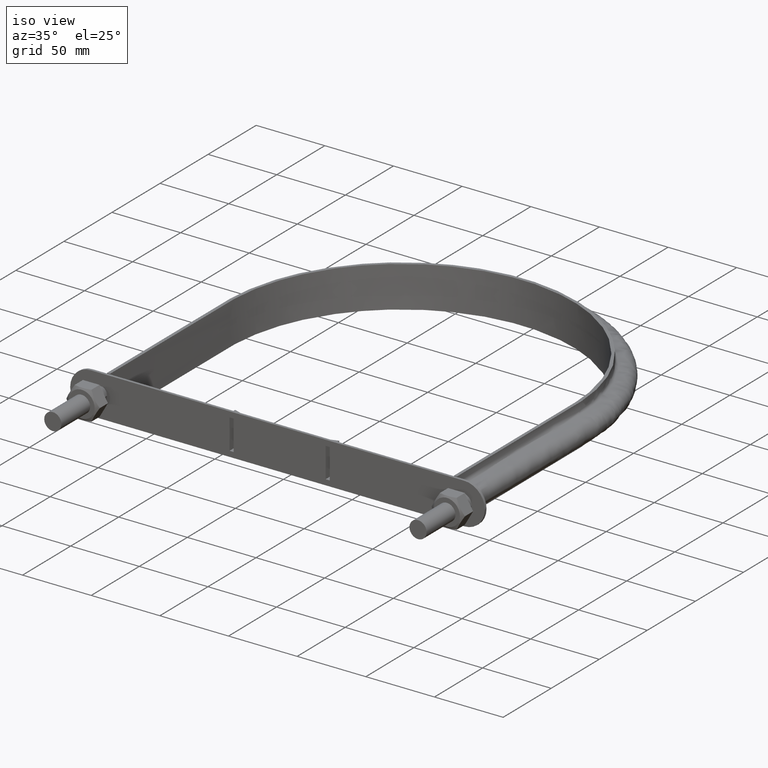
[diagram: clean part render]
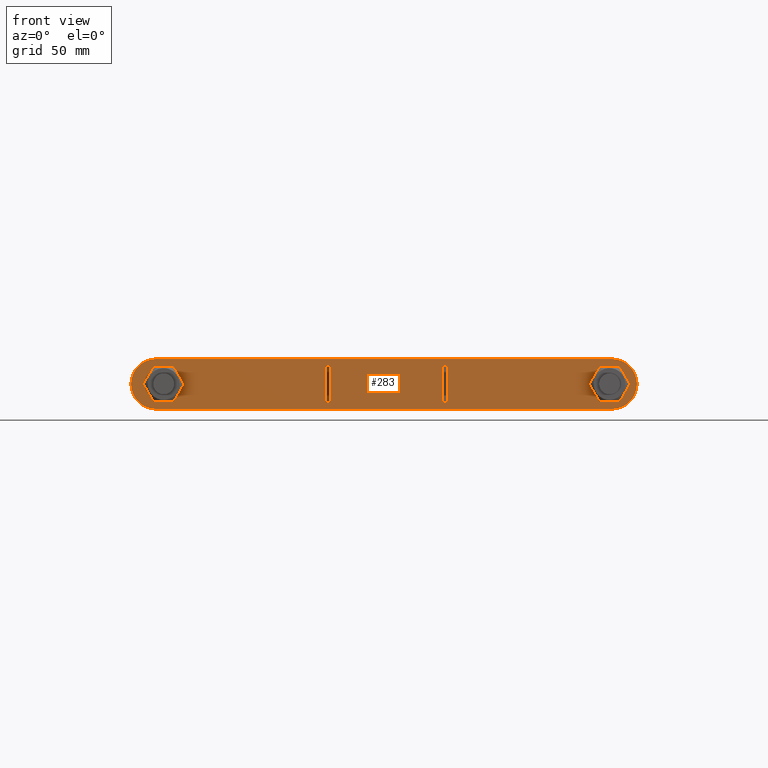
[diagram: tour spotlight — one face highlighted and labeled with its STEP entity id]
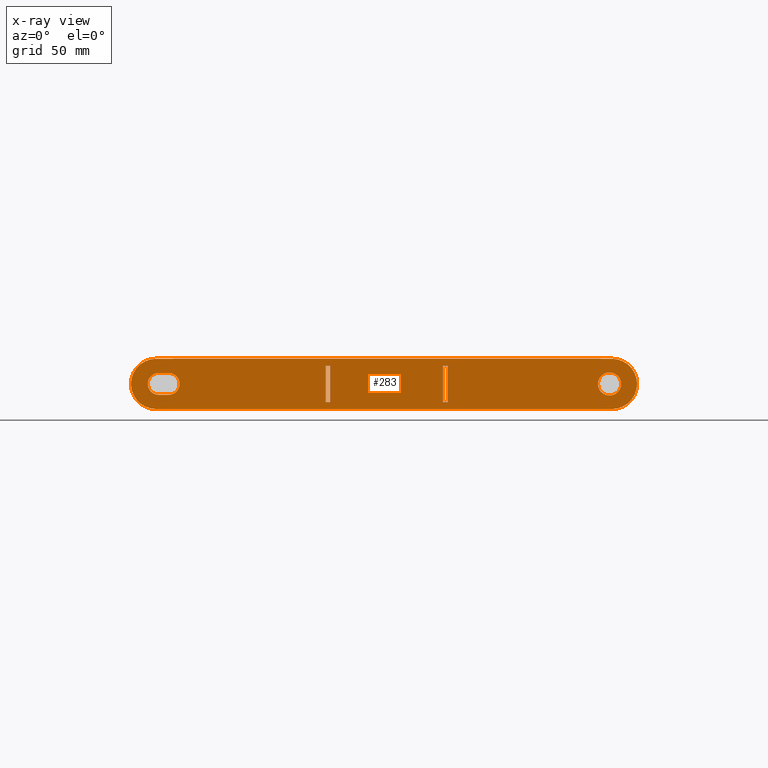
[diagram: x-ray of the same camera — body ghosted, this tour face saturated]
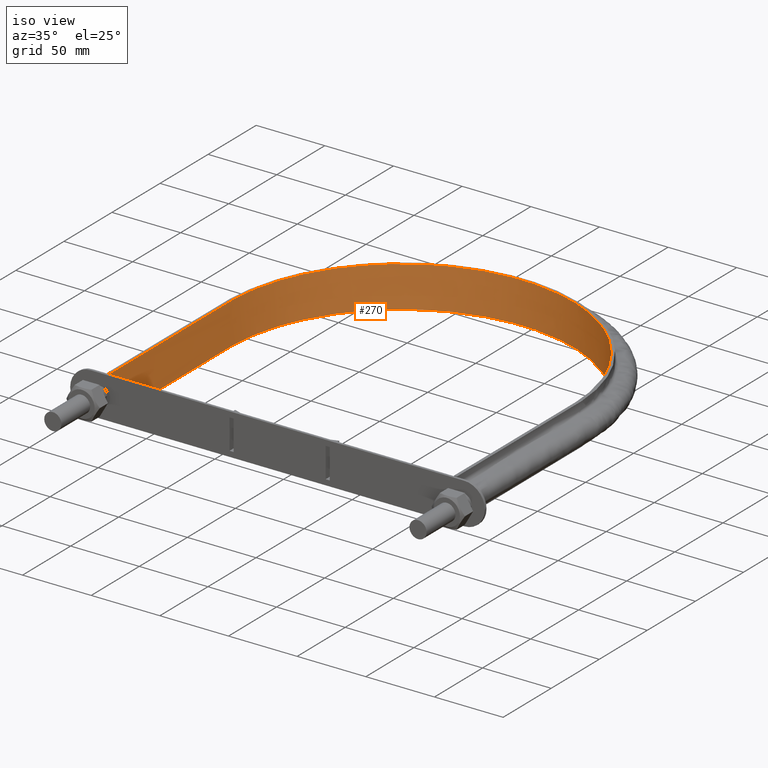
[diagram: tour spotlight — one face highlighted and labeled with its STEP entity id]
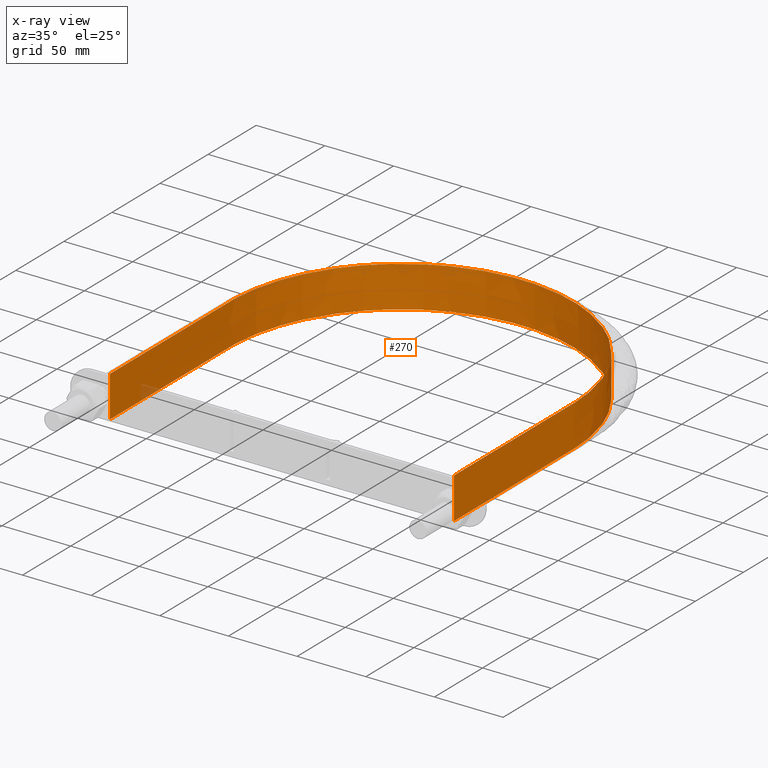
[diagram: x-ray of the same camera — body ghosted, this tour face saturated]
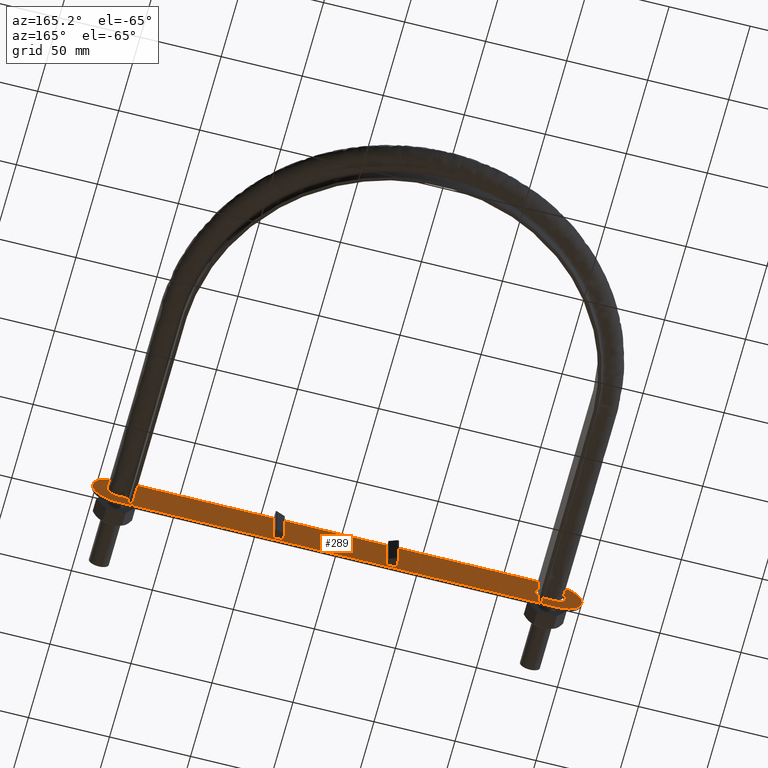
[diagram: tour spotlight — one face highlighted and labeled with its STEP entity id]
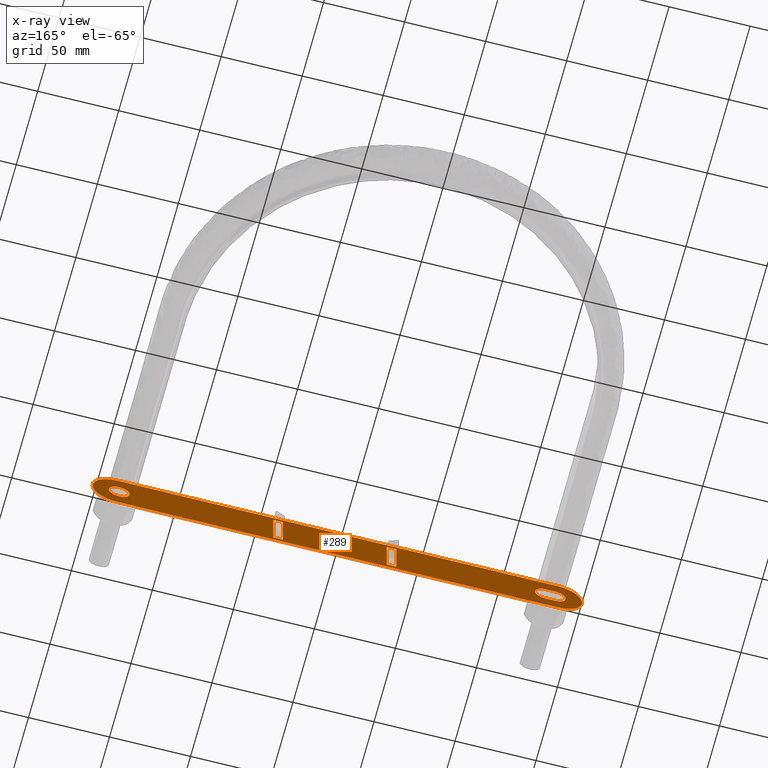
[diagram: x-ray of the same camera — body ghosted, this tour face saturated]
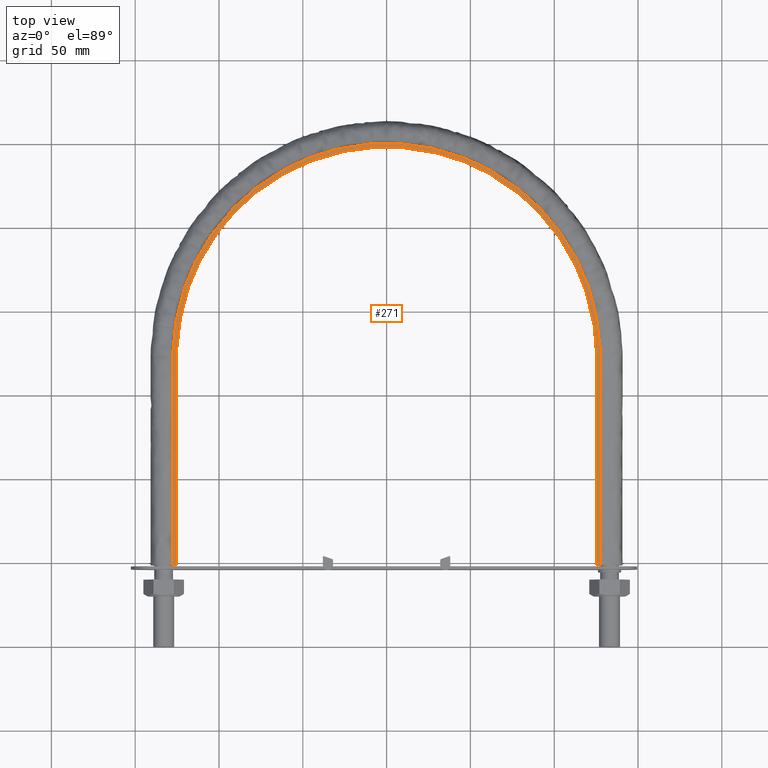
[diagram: tour spotlight — one face highlighted and labeled with its STEP entity id]
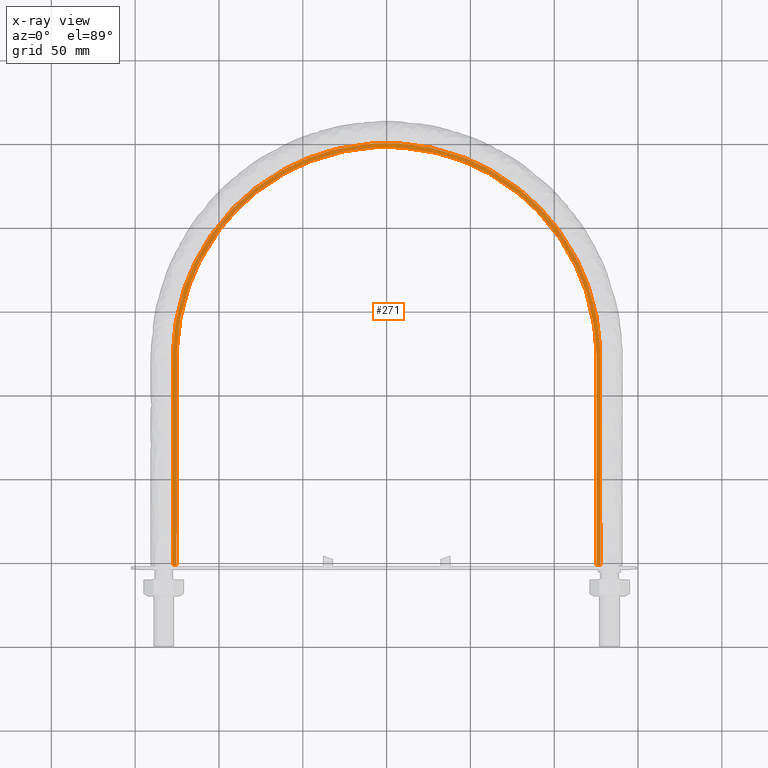
[diagram: x-ray of the same camera — body ghosted, this tour face saturated]
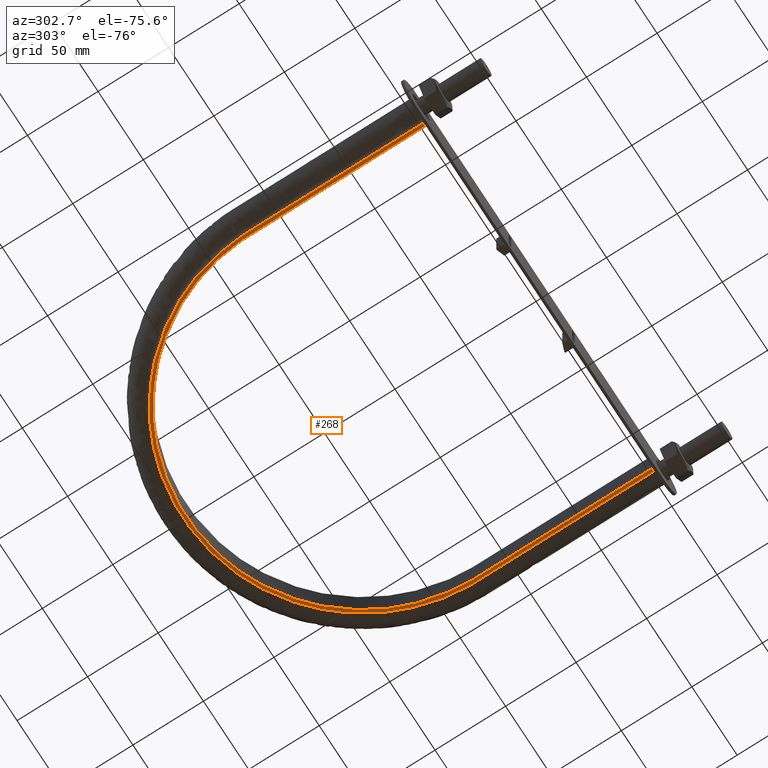
[diagram: tour spotlight — one face highlighted and labeled with its STEP entity id]
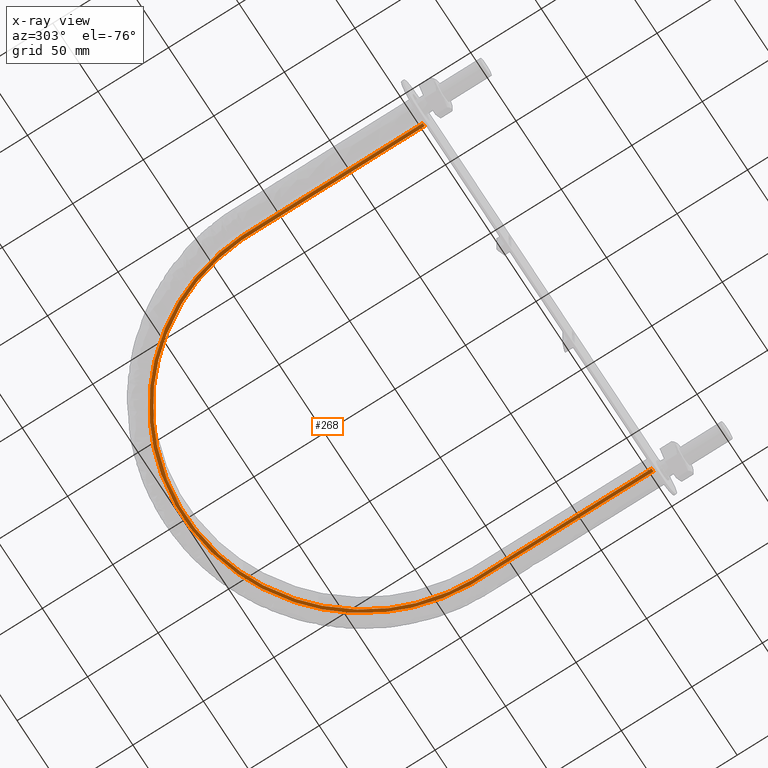
[diagram: x-ray of the same camera — body ghosted, this tour face saturated]
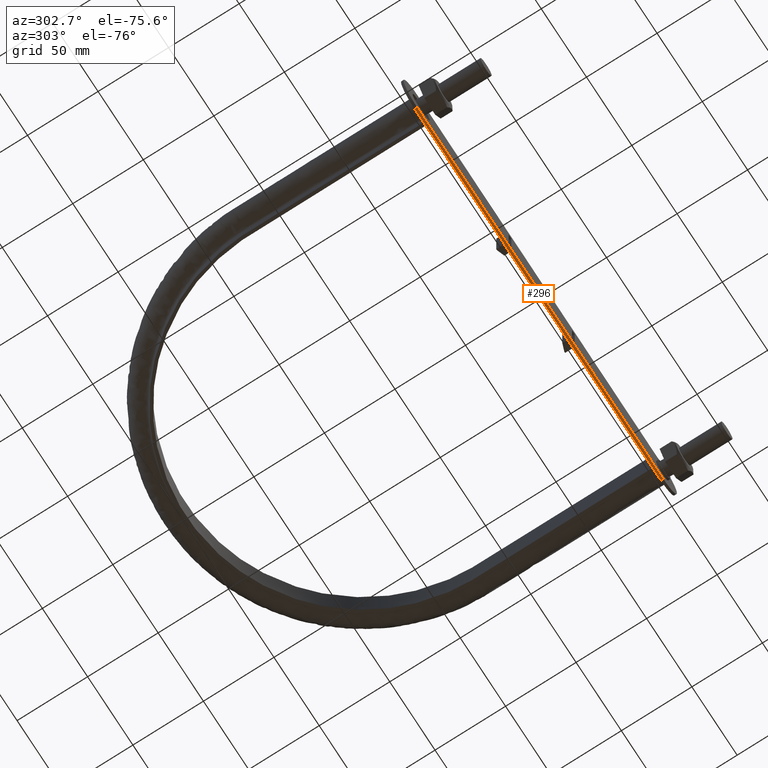
[diagram: tour spotlight — one face highlighted and labeled with its STEP entity id]
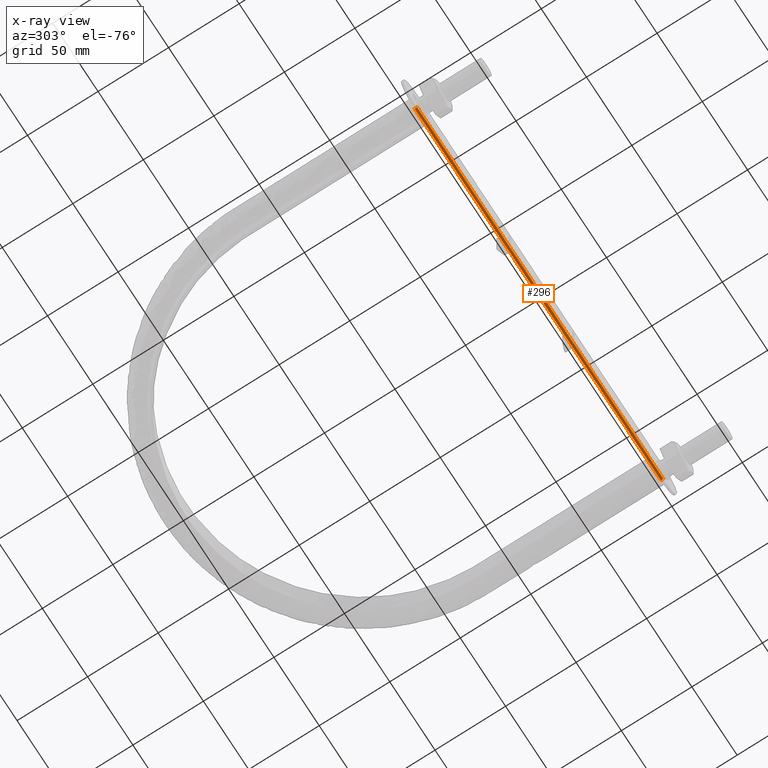
[diagram: x-ray of the same camera — body ghosted, this tour face saturated]
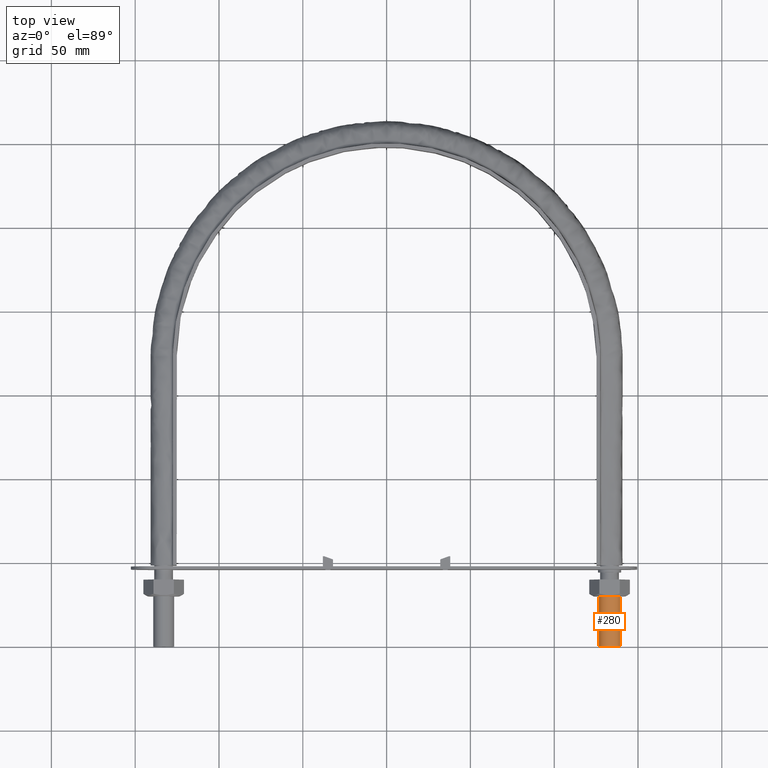
[diagram: tour spotlight — one face highlighted and labeled with its STEP entity id]
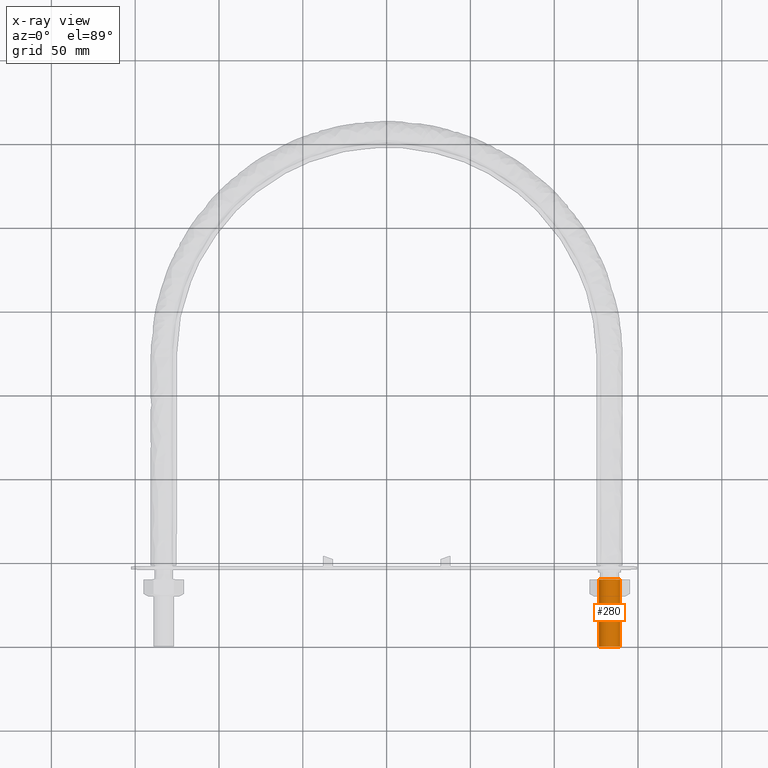
[diagram: x-ray of the same camera — body ghosted, this tour face saturated]
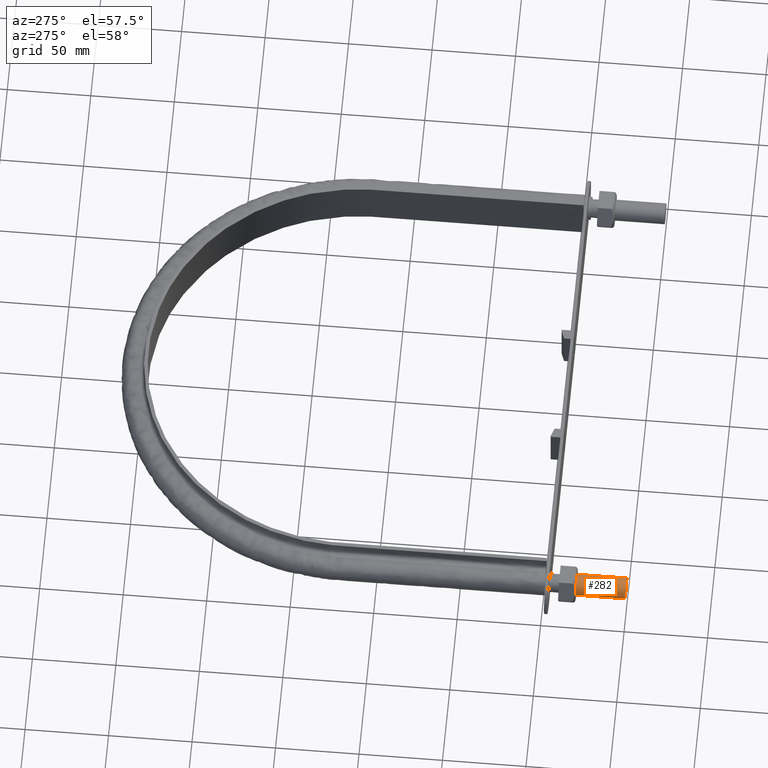
[diagram: tour spotlight — one face highlighted and labeled with its STEP entity id]
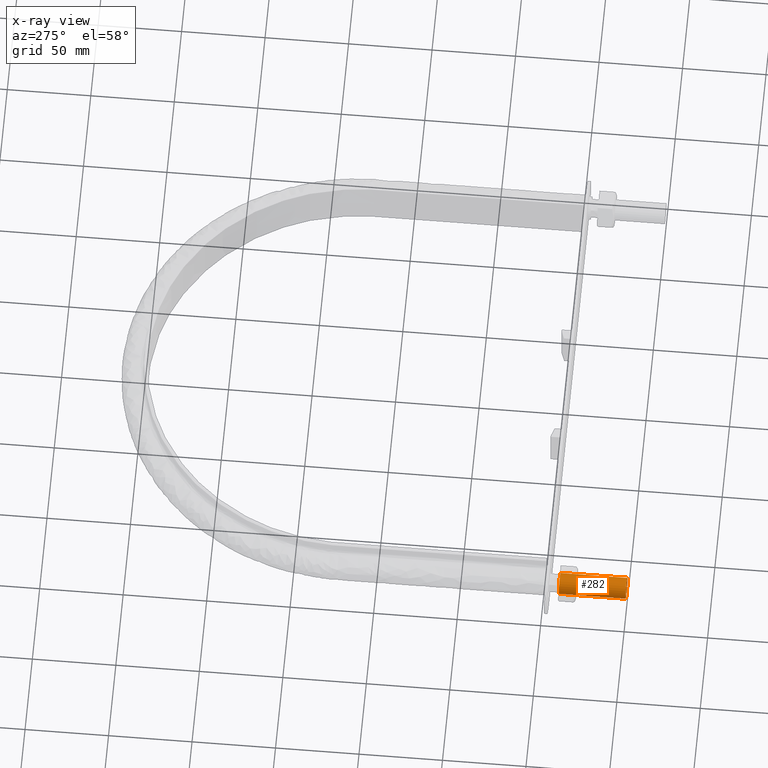
[diagram: x-ray of the same camera — body ghosted, this tour face saturated]
A machine part: a face-by-face anatomy tour. The part has 77 B-rep faces; the first image is the clean iso view, then the 8 largest visible faces are spotlighted one at a time (largest first), each with its STEP entity span.

Face 1 — front view, entity #283. An x-ray twin of the same camera follows (body ghosted, this face saturated) — the face is partly hidden behind the body. In plain terms, the highlighted planar face has unit normal (-0, 1, -0).
Definition (entity closure, byte-faithful):
#283 = ADVANCED_FACE( '', ( #387, #388, #389, #390, #391 ), #392, .F. );
#387 = FACE_BOUND( '', #1475, .T. );
#388 = FACE_OUTER_BOUND( '', #1476, .T. );
#389 = FACE_BOUND( '', #1477, .T. );
#390 = FACE_BOUND( '', #1478, .T. );
#391 = FACE_BOUND( '', #1479, .T. );
#392 = PLANE( '', #1480 );
#1475 = EDGE_LOOP( '', ( #1736, #1737, #1738, #1739 ) );
#1476 = EDGE_LOOP( '', ( #1740, #1741, #1742, #1743, #1744, #1745 ) );
#1477 = EDGE_LOOP( '', ( #1746 ) );
#1478 = EDGE_LOOP( '', ( #1747, #1748, #1749, #1750 ) );
#1479 = EDGE_LOOP( '', ( #1751, #1752, #1753, #1754 ) );
#1480 = AXIS2_PLACEMENT_3D( '', #1755, #1756, #1757 );
#1736 = ORIENTED_EDGE( '', *, *, #2209, .F. );
#1737 = ORIENTED_EDGE( '', *, *, #2210, .T. );
#1738 = ORIENTED_EDGE( '', *, *, #2211, .T. );
#1739 = ORIENTED_EDGE( '', *, *, #2212, .F. );
#1740 = ORIENTED_EDGE( '', *, *, #2213, .F. );
#1741 = ORIENTED_EDGE( '', *, *, #2214, .F. );
#1742 = ORIENTED_EDGE( '', *, *, #2215, .F. );
#1743 = ORIENTED_EDGE( '', *, *, #2216, .F. );
#1744 = ORIENTED_EDGE( '', *, *, #2217, .F. );
#1745 = ORIENTED_EDGE( '', *, *, #2218, .F. );
#1746 = ORIENTED_EDGE( '', *, *, #2219, .T. );
#1747 = ORIENTED_EDGE( '', *, *, #2220, .F. );
#1748 = ORIENTED_EDGE( '', *, *, #2221, .F. );
#1749 = ORIENTED_EDGE( '', *, *, #2222, .F. );
#1750 = ORIENTED_EDGE( '', *, *, #2223, .F. );
#1751 = ORIENTED_EDGE( '', *, *, #2224, .T. );
#1752 = ORIENTED_EDGE( '', *, *, #2225, .T. );
#1753 = ORIENTED_EDGE( '', *, *, #2226, .F. );
#1754 = ORIENTED_EDGE( '', *, *, #2227, .F. );
#1755 = CARTESIAN_POINT( '', ( -137.549999999983, 45.9999999999999, -2.71273124809479E-011 ) );
#1756 = DIRECTION( '', ( -1.98095588117765E-015, 1.00000000000000, -7.02743588008183E-015 ) );
#1757 = DIRECTION( '', ( -2.11941575400943E-013, 7.02743588008141E-015, 1.00000000000000 ) );
#2209 = EDGE_CURVE( '', #2383, #2384, #2385, .T. );
#2210 = EDGE_CURVE( '', #2383, #2386, #2387, .T. );
#2211 = EDGE_CURVE( '', #2386, #2388, #2389, .T. );
#2212 = EDGE_CURVE( '', #2384, #2388, #2390, .T. );
#2213 = EDGE_CURVE( '', #2391, #2392, #2393, .T. );
#2214 = EDGE_CURVE( '', #2394, #2391, #2395, .T. );
#2215 = EDGE_CURVE( '', #2396, #2394, #2397, .T. );
#2216 = EDGE_CURVE( '', #2398, #2396, #2399, .T. );
#2217 = EDGE_CURVE( '', #2400, #2398, #2401, .T. );
#2218 = EDGE_CURVE( '', #2392, #2400, #2402, .T. );
#2219 = EDGE_CURVE( '', #2403, #2403, #2404, .T. );
#2220 = EDGE_CURVE( '', #2405, #2406, #2407, .T. );
#2221 = EDGE_CURVE( '', #2408, #2405, #2409, .T. );
#2222 = EDGE_CURVE( '', #2410, #2408, #2411, .T. );
#2223 = EDGE_CURVE( '', #2406, #2410, #2412, .T. );
#2224 = EDGE_CURVE( '', #2413, #2414, #2415, .T. );
#2225 = EDGE_CURVE( '', #2414, #2416, #2417, .T. );
#2226 = EDGE_CURVE( '', #2418, #2416, #2419, .T. );
#2227 = EDGE_CURVE( '', #2413, #2418, #2420, .T. );
#2383 = VERTEX_POINT( '', #2841 );
#2384 = VERTEX_POINT( '', #2842 );
#2385 = LINE( '', #2843, #2844 );
#2386 = VERTEX_POINT( '', #2845 );
#2387 = LINE( '', #2846, #2847 );
#2388 = VERTEX_POINT( '', #2848 );
#2389 = LINE( '', #2849, #2850 );
#2390 = LINE( '', #2851, #2852 );
#2391 = VERTEX_POINT( '', #2853 );
#2392 = VERTEX_POINT( '', #2854 );
#2393 = CIRCLE( '', #2855, 15.0000000000000 );
#2394 = VERTEX_POINT( '', #2856 );
#2395 = CIRCLE( '', #2857, 15.0000000000000 );
#2396 = VERTEX_POINT( '', #2858 );
#2397 = LINE( '', #2859, #2860 );
#2398 = VERTEX_POINT( '', #2861 );
#2399 = CIRCLE( '', #2862, 15.0000000000000 );
#2400 = VERTEX_POINT( '', #2863 );
#2401 = CIRCLE( '', #2864, 15.0000000000000 );
#2402 = LINE( '', #2865, #2866 );
#2403 = VERTEX_POINT( '', #2867 );
#2404 = CIRCLE( '', #2868, 6.89999999999999 );
#2405 = VERTEX_POINT( '', #2869 );
#2406 = VERTEX_POINT( '', #2870 );
#2407 = CIRCLE( '', #2871, 6.50000000000000 );
#2408 = VERTEX_POINT( '', #2872 );
#2409 = LINE( '', #2873, #2874 );
#2410 = VERTEX_POINT( '', #2875 );
#2411 = CIRCLE( '', #2876, 6.50000000000000 );
#2412 = LINE( '', #2877, #2878 );
#2413 = VERTEX_POINT( '', #2879 );
#2414 = VERTEX_POINT( '', #2880 );
#2415 = LINE( '', #2881, #2882 );
#2416 = VERTEX_POINT( '', #2883 );
#2417 = LINE( '', #2884, #2885 );
#2418 = VERTEX_POINT( '', #2886 );
#2419 = LINE( '', #2887, #2888 );
#2420 = LINE( '', #2889, #2890 );
#2841 = CARTESIAN_POINT( '', ( -36.4999999999803, 46.0000000000000, -11.0000000000057 ) );
#2842 = CARTESIAN_POINT( '', ( -33.4999999999803, 46.0000000000000, -11.0000000000051 ) );
#2843 = CARTESIAN_POINT( '', ( -36.4999999999803, 46.0000000000000, -11.0000000000057 ) );
#2844 = VECTOR( '', #3315, 1000.00000000000 );
#2845 = CARTESIAN_POINT( '', ( -36.4999999999849, 46.0000000000001, 10.9999999999943 ) );
#2846 = CARTESIAN_POINT( '', ( -36.4999999999803, 46.0000000000000, -11.0000000000057 ) );
#2847 = VECTOR( '', #3316, 1000.00000000000 );
#2848 = CARTESIAN_POINT( '', ( -33.4999999999849, 46.0000000000002, 10.9999999999949 ) );
#2849 = CARTESIAN_POINT( '', ( -36.4999999999849, 46.0000000000001, 10.9999999999943 ) );
#2850 = VECTOR( '', #3317, 1000.00000000000 );
#2851 = CARTESIAN_POINT( '', ( -33.4999999999803, 46.0000000000000, -11.0000000000051 ) );
#2852 = VECTOR( '', #3318, 1000.00000000000 );
#2853 = CARTESIAN_POINT( '', ( -152.549999999983, 45.9999999999998, -3.02942930476302E-011 ) );
#2854 = CARTESIAN_POINT( '', ( -137.549999999986, 46.0000000000000, 14.9999999999729 ) );
#2855 = AXIS2_PLACEMENT_3D( '', #3319, #3320, #3321 );
#2856 = CARTESIAN_POINT( '', ( -137.549999999979, 45.9999999999998, -15.0000000000271 ) );
#2857 = AXIS2_PLACEMENT_3D( '', #3322, #3323, #3324 );
#2858 = CARTESIAN_POINT( '', ( 134.450000000021, 46.0000000000003, -14.9999999999695 ) );
#2859 = CARTESIAN_POINT( '', ( 134.450000000021, 46.0000000000003, -14.9999999999695 ) );
#2860 = VECTOR( '', #3325, 1000.00000000000 );
#2861 = CARTESIAN_POINT( '', ( 149.450000000017, 46.0000000000004, 3.37016543825987E-011 ) );
#2862 = AXIS2_PLACEMENT_3D( '', #3326, #3327, #3328 );
#2863 = CARTESIAN_POINT( '', ( 134.450000000014, 46.0000000000005, 15.0000000000305 ) );
#2864 = AXIS2_PLACEMENT_3D( '', #3329, #3330, #3331 );
#2865 = CARTESIAN_POINT( '', ( -137.549999999986, 46.0000000000000, 14.9999999999729 ) );
#2866 = VECTOR( '', #3332, 1000.00000000000 );
#2867 = CARTESIAN_POINT( '', ( 139.900000000017, 46.0000000000004, 3.16619998262359E-011 ) );
#2868 = AXIS2_PLACEMENT_3D( '', #3333, #3334, #3335 );
#2869 = CARTESIAN_POINT( '', ( -135.999999999984, 45.9999982000070, 6.49999999997320 ) );
#2870 = CARTESIAN_POINT( '', ( -135.999999999981, 45.9999982000069, -6.50000000002680 ) );
#2871 = AXIS2_PLACEMENT_3D( '', #3336, #3337, #3338 );
#2872 = CARTESIAN_POINT( '', ( -129.999999999984, 45.9999982000070, 6.49999999997447 ) );
#2873 = CARTESIAN_POINT( '', ( -129.999999999984, 45.9999982000070, 6.49999999997447 ) );
#2874 = VECTOR( '', #3339, 1000.00000000000 );
#2875 = CARTESIAN_POINT( '', ( -129.999999999981, 45.9999982000069, -6.50000000002553 ) );
#2876 = AXIS2_PLACEMENT_3D( '', #3340, #3341, #3342 );
#2877 = CARTESIAN_POINT( '', ( -135.999999999981, 45.9999982000069, -6.50000000002680 ) );
#2878 = VECTOR( '', #3343, 1000.00000000000 );
#2879 = CARTESIAN_POINT( '', ( 36.5000000000197, 46.0000000000001, -10.9999999999902 ) );
#2880 = CARTESIAN_POINT( '', ( 33.5000000000197, 46.0000000000001, -10.9999999999909 ) );
#2881 = CARTESIAN_POINT( '', ( 36.5000000000197, 46.0000000000001, -10.9999999999902 ) );
#2882 = VECTOR( '', #3344, 1000.00000000000 );
#2883 = CARTESIAN_POINT( '', ( 33.5000000000151, 46.0000000000003, 11.0000000000091 ) );
#2884 = CARTESIAN_POINT( '', ( 33.5000000000197, 46.0000000000001, -10.9999999999909 ) );
#2885 = VECTOR( '', #3345, 1000.00000000000 );
#2886 = CARTESIAN_POINT( '', ( 36.5000000000151, 46.0000000000003, 11.0000000000098 ) );
#2887 = CARTESIAN_POINT( '', ( 36.5000000000151, 46.0000000000003, 11.0000000000098 ) );
#2888 = VECTOR( '', #3346, 1000.00000000000 );
#2889 = CARTESIAN_POINT( '', ( 36.5000000000197, 46.0000000000001, -10.9999999999902 ) );
#2890 = VECTOR( '', #3347, 1000.00000000000 );
#3315 = DIRECTION( '', ( 1.00000000000000, 1.91951775807162E-015, 2.11941575400943E-013 ) );
#3316 = DIRECTION( '', ( -2.12201441469375E-013, 7.18818809629539E-015, 1.00000000000000 ) );
#3317 = DIRECTION( '', ( 1.00000000000000, 1.91951775807162E-015, 2.11941575400943E-013 ) );
#3318 = DIRECTION( '', ( -2.12201441469375E-013, 7.18818809629539E-015, 1.00000000000000 ) );
#3319 = CARTESIAN_POINT( '', ( -137.549999999983, 45.9999999999999, -2.71273124809479E-011 ) );
#3320 = DIRECTION( '', ( -1.98095588117765E-015, 1.00000000000000, -7.02743588008183E-015 ) );
#3321 = DIRECTION( '', ( -1.00000000000000, -1.98095588117914E-015, -2.12057223632675E-013 ) );
#3322 = CARTESIAN_POINT( '', ( -137.549999999983, 45.9999999999999, -2.71134346931400E-011 ) );
#3323 = DIRECTION( '', ( -1.98095588117765E-015, 1.00000000000000, -7.02743588008183E-015 ) );
#3324 = DIRECTION( '', ( 2.11941575400943E-013, -7.02743588008141E-015, -1.00000000000000 ) );
#3325 = DIRECTION( '', ( -1.00000000000000, -1.98095588117914E-015, -2.11941575400943E-013 ) );
#3326 = CARTESIAN_POINT( '', ( 134.450000000017, 46.0000000000004, 3.05346738159164E-011 ) );
#3327 = DIRECTION( '', ( -1.98095588117765E-015, 1.00000000000000, -7.02743588008183E-015 ) );
#3328 = DIRECTION( '', ( 1.00000000000000, 1.98095588117914E-015, 2.12057223632675E-013 ) );
#3329 = CARTESIAN_POINT( '', ( 134.450000000017, 46.0000000000004, 3.05207960281086E-011 ) );
#3330 = DIRECTION( '', ( -1.98095588117765E-015, 1.00000000000000, -7.02743588008183E-015 ) );
#3331 = DIRECTION( '', ( -2.11941575400943E-013, 7.02743588008141E-015, 1.00000000000000 ) );
#3332 = DIRECTION( '', ( 1.00000000000000, 1.98095588117914E-015, 2.11941575400943E-013 ) );
#3333 = CARTESIAN_POINT( '', ( 133.000000000017, 46.0000000000004, 3.01996029559694E-011 ) );
#3334 = DIRECTION( '', ( -1.98095588117765E-015, 1.00000000000000, -7.02743588008183E-015 ) );
#3335 = DIRECTION( '', ( 1.00000000000000, 1.98095588117914E-015, 2.11941575400943E-013 ) );
#3336 = CARTESIAN_POINT( '', ( -135.999999999983, 45.9999982000070, -2.68005377499030E-011 ) );
#3337 = DIRECTION( '', ( 1.98095588117765E-015, -1.00000000000000, 7.02743588008183E-015 ) );
#3338 = DIRECTION( '', ( -2.11941575400943E-013, 7.02743588008141E-015, 1.00000000000000 ) );
#3339 = DIRECTION( '', ( -1.00000000000000, -1.98095588117914E-015, -2.11941575400943E-013 ) );
#3340 = CARTESIAN_POINT( '', ( -129.999999999983, 45.9999982000070, -2.55288882974974E-011 ) );
#3341 = DIRECTION( '', ( 1.98095588117765E-015, -1.00000000000000, 7.02743588008183E-015 ) );
#3342 = DIRECTION( '', ( 2.11941575400943E-013, -7.02743588008141E-015, -1.00000000000000 ) );
#3343 = DIRECTION( '', ( 1.00000000000000, 1.98095588117914E-015, 2.11941575400943E-013 ) );
#3344 = DIRECTION( '', ( -1.00000000000000, -1.91993336890441E-015, -2.11941575400943E-013 ) );
#3345 = DIRECTION( '', ( -2.11681709332510E-013, 7.18818809629539E-015, 1.00000000000000 ) );
#3346 = DIRECTION( '', ( -1.00000000000000, -1.91993336890441E-015, -2.11941575400943E-013 ) );
#3347 = DIRECTION( '', ( -2.11681709332510E-013, 7.18818809629539E-015, 1.00000000000000 ) );

Face 2 — iso view, entity #270. An x-ray twin of the same camera follows (body ghosted, this face saturated) — the face is partly hidden behind the body. In plain terms, the highlighted face is a SurfaceOfExtrusion surface.
Definition (entity closure, byte-faithful):
#270 = ADVANCED_FACE( '', ( #353 ), #354, .T. );
#353 = FACE_OUTER_BOUND( '', #540, .T. );
#354 = SURFACE_OF_LINEAR_EXTRUSION( '', #541, #542 );
#540 = EDGE_LOOP( '', ( #1643, #1644, #1645, #1646 ) );
#541 = B_SPLINE_CURVE_WITH_KNOTS( '', 3, ( #1647, #1648, #1649, #1650, #1651, #1652, #1653, #1654, #1655, #1656, #1657, #1658, #1659, #1660, #1661, #1662, #1663 ), .UNSPECIFIED., .F., .F., ( 4, 3, 1, 1, 1, 1, 1, 1, 1, 3, 4 ), ( -10.0000000000000, -9.00000000000000, -8.00000000000000, -7.00000000000000, -6.00000000000000, -5.00000000000000, -4.00000000000000, -3.00000000000000, -2.00000000000000, -1.00000000000000, 0.000000000000000 ), .UNSPECIFIED. );
#542 = VECTOR( '', #1664, 1000.00000000000 );
#1643 = ORIENTED_EDGE( '', *, *, #2199, .F. );
#1644 = ORIENTED_EDGE( '', *, *, #2188, .F. );
#1645 = ORIENTED_EDGE( '', *, *, #2192, .T. );
#1646 = ORIENTED_EDGE( '', *, *, #2196, .T. );
#1647 = CARTESIAN_POINT( '', ( -125.250000000000, 48.5000000000001, -410.168591241883 ) );
#1648 = CARTESIAN_POINT( '', ( -125.250000000000, 89.9166666666667, -410.168591241883 ) );
#1649 = CARTESIAN_POINT( '', ( -125.250000000000, 131.333333333333, -410.168591241883 ) );
#1650 = CARTESIAN_POINT( '', ( -125.250000000000, 172.750000000000, -410.168591241883 ) );
#1651 = CARTESIAN_POINT( '', ( -125.250000000000, 189.129602627270, -410.168591241883 ) );
#1652 = CARTESIAN_POINT( '', ( -118.728466915651, 221.935152350602, -410.168591241883 ) );
#1653 = CARTESIAN_POINT( '', ( -90.8708344774529, 263.619162254352, -410.168591241883 ) );
#1654 = CARTESIAN_POINT( '', ( -49.1789412362281, 291.478944693680, -410.168591241883 ) );
#1655 = CARTESIAN_POINT( '', ( -4.63741712148926E-014, 301.260527653160, -410.168591241883 ) );
#1656 = CARTESIAN_POINT( '', ( 49.1789412362279, 291.478944693680, -410.168591241883 ) );
#1657 = CARTESIAN_POINT( '', ( 90.8708344774527, 263.619162254352, -410.168591241883 ) );
#1658 = CARTESIAN_POINT( '', ( 118.728466915651, 221.935152350602, -410.168591241883 ) );
#1659 = CARTESIAN_POINT( '', ( 125.250000000000, 189.129602627270, -410.168591241883 ) );
#1660 = CARTESIAN_POINT( '', ( 125.250000000000, 172.750000000000, -410.168591241883 ) );
#1661 = CARTESIAN_POINT( '', ( 125.250000000000, 131.333333333333, -410.168591241883 ) );
#1662 = CARTESIAN_POINT( '', ( 125.250000000000, 89.9166666666667, -410.168591241883 ) );
#1663 = CARTESIAN_POINT( '', ( 125.250000000000, 48.5000000000000, -410.168591241883 ) );
#1664 = DIRECTION( '', ( 0.000000000000000, 0.000000000000000, 1.00000000000000 ) );
#2188 = EDGE_CURVE( '', #2345, #2346, #2347, .T. );
#2192 = EDGE_CURVE( '', #2345, #2353, #2354, .T. );
#2196 = EDGE_CURVE( '', #2353, #2360, #2361, .T. );
#2199 = EDGE_CURVE( '', #2346, #2360, #2365, .T. );
#2345 = VERTEX_POINT( '', #2623 );
#2346 = VERTEX_POINT( '', #2624 );
#2347 = LINE( '', #2625, #2626 );
#2353 = VERTEX_POINT( '', #2664 );
#2354 = B_SPLINE_CURVE_WITH_KNOTS( '', 3, ( #2665, #2666, #2667, #2668, #2669, #2670, #2671, #2672, #2673, #2674, #2675, #2676, #2677, #2678, #2679, #2680, #2681 ), .UNSPECIFIED., .F., .F., ( 4, 3, 1, 1, 1, 1, 1, 1, 1, 3, 4 ), ( -10.0000000000000, -9.00000000000000, -8.00000000000000, -7.00000000000000, -6.00000000000000, -5.00000000000000, -4.00000000000000, -3.00000000000000, -2.00000000000000, -1.00000000000000, 0.000000000000000 ), .UNSPECIFIED. );
#2360 = VERTEX_POINT( '', #2714 );
#2361 = LINE( '', #2715, #2716 );
#2365 = B_SPLINE_CURVE_WITH_KNOTS( '', 3, ( #2751, #2752, #2753, #2754, #2755, #2756, #2757, #2758, #2759, #2760, #2761, #2762, #2763, #2764, #2765, #2766, #2767 ), .UNSPECIFIED., .F., .F., ( 4, 3, 1, 1, 1, 1, 1, 1, 1, 3, 4 ), ( -10.0000000000000, -9.00000000000000, -8.00000000000000, -7.00000000000000, -6.00000000000000, -5.00000000000000, -4.00000000000000, -3.00000000000000, -2.00000000000000, -1.00000000000000, 0.000000000000000 ), .UNSPECIFIED. );
#2623 = CARTESIAN_POINT( '', ( -125.250000000000, 48.5000000000003, -15.0000000000000 ) );
#2624 = CARTESIAN_POINT( '', ( -125.250000000000, 48.5000000000003, 15.0000000000000 ) );
#2625 = CARTESIAN_POINT( '', ( -125.250000000000, 48.5000000000001, -410.168591241883 ) );
#2626 = VECTOR( '', #3297, 1000.00000000000 );
#2664 = CARTESIAN_POINT( '', ( 125.250000000000, 48.5000000000000, -15.0000000000005 ) );
#2665 = CARTESIAN_POINT( '', ( -125.250000000000, 48.5000000000001, -15.0000000000002 ) );
#2666 = CARTESIAN_POINT( '', ( -125.250000000000, 89.9166666666667, -15.0000000000002 ) );
#2667 = CARTESIAN_POINT( '', ( -125.250000000000, 131.333333333333, -15.0000000000002 ) );
#2668 = CARTESIAN_POINT( '', ( -125.250000000000, 172.750000000000, -15.0000000000002 ) );
#2669 = CARTESIAN_POINT( '', ( -125.250000000000, 189.129602627270, -15.0000000000002 ) );
#2670 = CARTESIAN_POINT( '', ( -118.728466915651, 221.935152350602, -15.0000000000002 ) );
#2671 = CARTESIAN_POINT( '', ( -90.8708344774529, 263.619162254352, -15.0000000000002 ) );
#2672 = CARTESIAN_POINT( '', ( -49.1789412362281, 291.478944693680, -15.0000000000002 ) );
#2673 = CARTESIAN_POINT( '', ( -4.63741712148926E-014, 301.260527653160, -15.0000000000002 ) );
#2674 = CARTESIAN_POINT( '', ( 49.1789412362279, 291.478944693680, -15.0000000000002 ) );
#2675 = CARTESIAN_POINT( '', ( 90.8708344774527, 263.619162254352, -15.0000000000002 ) );
#2676 = CARTESIAN_POINT( '', ( 118.728466915651, 221.935152350602, -15.0000000000002 ) );
#2677 = CARTESIAN_POINT( '', ( 125.250000000000, 189.129602627270, -15.0000000000002 ) );
#2678 = CARTESIAN_POINT( '', ( 125.250000000000, 172.750000000000, -15.0000000000002 ) );
#2679 = CARTESIAN_POINT( '', ( 125.250000000000, 131.333333333333, -15.0000000000002 ) );
#2680 = CARTESIAN_POINT( '', ( 125.250000000000, 89.9166666666667, -15.0000000000002 ) );
#2681 = CARTESIAN_POINT( '', ( 125.250000000000, 48.5000000000000, -15.0000000000002 ) );
#2714 = CARTESIAN_POINT( '', ( 125.250000000000, 48.5000000000003, 15.0000000000000 ) );
#2715 = CARTESIAN_POINT( '', ( 125.250000000000, 48.5000000000000, -410.168591241883 ) );
#2716 = VECTOR( '', #3301, 1000.00000000000 );
#2751 = CARTESIAN_POINT( '', ( -125.250000000000, 48.5000000000001, 14.9999999999998 ) );
#2752 = CARTESIAN_POINT( '', ( -125.250000000000, 89.9166666666667, 14.9999999999998 ) );
#2753 = CARTESIAN_POINT( '', ( -125.250000000000, 131.333333333333, 14.9999999999998 ) );
#2754 = CARTESIAN_POINT( '', ( -125.250000000000, 172.750000000000, 14.9999999999998 ) );
#2755 = CARTESIAN_POINT( '', ( -125.250000000000, 189.129602627270, 14.9999999999998 ) );
#2756 = CARTESIAN_POINT( '', ( -118.728466915651, 221.935152350602, 14.9999999999998 ) );
#2757 = CARTESIAN_POINT( '', ( -90.8708344774529, 263.619162254352, 14.9999999999998 ) );
#2758 = CARTESIAN_POINT( '', ( -49.1789412362281, 291.478944693680, 14.9999999999998 ) );
#2759 = CARTESIAN_POINT( '', ( -4.63741712148926E-014, 301.260527653160, 14.9999999999998 ) );
#2760 = CARTESIAN_POINT( '', ( 49.1789412362279, 291.478944693680, 14.9999999999998 ) );
#2761 = CARTESIAN_POINT( '', ( 90.8708344774527, 263.619162254352, 14.9999999999998 ) );
#2762 = CARTESIAN_POINT( '', ( 118.728466915651, 221.935152350602, 14.9999999999998 ) );
#2763 = CARTESIAN_POINT( '', ( 125.250000000000, 189.129602627270, 14.9999999999998 ) );
#2764 = CARTESIAN_POINT( '', ( 125.250000000000, 172.750000000000, 14.9999999999998 ) );
#2765 = CARTESIAN_POINT( '', ( 125.250000000000, 131.333333333333, 14.9999999999998 ) );
#2766 = CARTESIAN_POINT( '', ( 125.250000000000, 89.9166666666667, 14.9999999999998 ) );
#2767 = CARTESIAN_POINT( '', ( 125.250000000000, 48.5000000000000, 14.9999999999998 ) );
#3297 = DIRECTION( '', ( 0.000000000000000, 0.000000000000000, 1.00000000000000 ) );
#3301 = DIRECTION( '', ( 0.000000000000000, 0.000000000000000, 1.00000000000000 ) );

Face 3 — auxiliary view, entity #289. An x-ray twin of the same camera follows (body ghosted, this face saturated) — the face is partly hidden behind the body. In plain terms, the highlighted planar face has unit normal (-0, 1, -0).
Definition (entity closure, byte-faithful):
#289 = ADVANCED_FACE( '', ( #403, #404, #405, #406, #407 ), #408, .T. );
#403 = FACE_BOUND( '', #1491, .T. );
#404 = FACE_OUTER_BOUND( '', #1492, .T. );
#405 = FACE_BOUND( '', #1493, .T. );
#406 = FACE_BOUND( '', #1494, .T. );
#407 = FACE_BOUND( '', #1495, .T. );
#408 = PLANE( '', #1496 );
#1491 = EDGE_LOOP( '', ( #1793, #1794, #1795, #1796 ) );
#1492 = EDGE_LOOP( '', ( #1797, #1798, #1799, #1800, #1801, #1802 ) );
#1493 = EDGE_LOOP( '', ( #1803 ) );
#1494 = EDGE_LOOP( '', ( #1804, #1805, #1806, #1807 ) );
#1495 = EDGE_LOOP( '', ( #1808, #1809, #1810, #1811 ) );
#1496 = AXIS2_PLACEMENT_3D( '', #1812, #1813, #1814 );
#1793 = ORIENTED_EDGE( '', *, *, #2241, .T. );
#1794 = ORIENTED_EDGE( '', *, *, #2242, .T. );
#1795 = ORIENTED_EDGE( '', *, *, #2243, .F. );
#1796 = ORIENTED_EDGE( '', *, *, #2244, .F. );
#1797 = ORIENTED_EDGE( '', *, *, #2228, .T. );
#1798 = ORIENTED_EDGE( '', *, *, #2245, .T. );
#1799 = ORIENTED_EDGE( '', *, *, #2246, .T. );
#1800 = ORIENTED_EDGE( '', *, *, #2247, .T. );
#1801 = ORIENTED_EDGE( '', *, *, #2248, .T. );
#1802 = ORIENTED_EDGE( '', *, *, #2249, .T. );
#1803 = ORIENTED_EDGE( '', *, *, #2250, .F. );
#1804 = ORIENTED_EDGE( '', *, *, #2251, .F. );
#1805 = ORIENTED_EDGE( '', *, *, #2238, .F. );
#1806 = ORIENTED_EDGE( '', *, *, #2252, .F. );
#1807 = ORIENTED_EDGE( '', *, *, #2253, .F. );
#1808 = ORIENTED_EDGE( '', *, *, #2254, .F. );
#1809 = ORIENTED_EDGE( '', *, *, #2255, .T. );
#1810 = ORIENTED_EDGE( '', *, *, #2256, .T. );
#1811 = ORIENTED_EDGE( '', *, *, #2257, .F. );
#1812 = CARTESIAN_POINT( '', ( -137.549999999983, 47.7999999999999, -2.71399618655320E-011 ) );
#1813 = DIRECTION( '', ( -1.98095588117765E-015, 1.00000000000000, -7.02743588008183E-015 ) );
#1814 = DIRECTION( '', ( -2.11941575400943E-013, 7.02743588008141E-015, 1.00000000000000 ) );
#2228 = EDGE_CURVE( '', #2421, #2422, #2423, .T. );
#2238 = EDGE_CURVE( '', #2437, #2438, #2439, .T. );
#2241 = EDGE_CURVE( '', #2442, #2443, #2444, .T. );
#2242 = EDGE_CURVE( '', #2443, #2445, #2446, .T. );
#2243 = EDGE_CURVE( '', #2447, #2445, #2448, .T. );
#2244 = EDGE_CURVE( '', #2442, #2447, #2449, .T. );
#2245 = EDGE_CURVE( '', #2422, #2450, #2451, .T. );
#2246 = EDGE_CURVE( '', #2450, #2452, #2453, .T. );
#2247 = EDGE_CURVE( '', #2452, #2454, #2455, .T. );
#2248 = EDGE_CURVE( '', #2454, #2456, #2457, .T. );
#2249 = EDGE_CURVE( '', #2456, #2421, #2458, .T. );
#2250 = EDGE_CURVE( '', #2459, #2459, #2460, .T. );
#2251 = EDGE_CURVE( '', #2438, #2461, #2462, .F. );
#2252 = EDGE_CURVE( '', #2463, #2437, #2464, .F. );
#2253 = EDGE_CURVE( '', #2461, #2463, #2465, .T. );
#2254 = EDGE_CURVE( '', #2466, #2467, #2468, .T. );
#2255 = EDGE_CURVE( '', #2466, #2469, #2470, .T. );
#2256 = EDGE_CURVE( '', #2469, #2471, #2472, .T. );
#2257 = EDGE_CURVE( '', #2467, #2471, #2473, .T. );
#2421 = VERTEX_POINT( '', #2891 );
#2422 = VERTEX_POINT( '', #2892 );
#2423 = CIRCLE( '', #2893, 15.0000000000000 );
#2437 = VERTEX_POINT( '', #2916 );
#2438 = VERTEX_POINT( '', #2917 );
#2439 = LINE( '', #2918, #2919 );
#2442 = VERTEX_POINT( '', #2924 );
#2443 = VERTEX_POINT( '', #2925 );
#2444 = LINE( '', #2926, #2927 );
#2445 = VERTEX_POINT( '', #2928 );
#2446 = LINE( '', #2929, #2930 );
#2447 = VERTEX_POINT( '', #2931 );
#2448 = LINE( '', #2932, #2933 );
#2449 = LINE( '', #2934, #2935 );
#2450 = VERTEX_POINT( '', #2936 );
#2451 = LINE( '', #2937, #2938 );
#2452 = VERTEX_POINT( '', #2939 );
#2453 = CIRCLE( '', #2940, 15.0000000000000 );
#2454 = VERTEX_POINT( '', #2941 );
#2455 = CIRCLE( '', #2942, 15.0000000000000 );
#2456 = VERTEX_POINT( '', #2943 );
#2457 = LINE( '', #2944, #2945 );
#2458 = CIRCLE( '', #2946, 15.0000000000000 );
#2459 = VERTEX_POINT( '', #2947 );
#2460 = CIRCLE( '', #2948, 6.39999999999999 );
#2461 = VERTEX_POINT( '', #2949 );
#2462 = CIRCLE( '', #2950, 6.50000000000000 );
#2463 = VERTEX_POINT( '', #2951 );
#2464 = CIRCLE( '', #2952, 6.50000000000000 );
#2465 = LINE( '', #2953, #2954 );
#2466 = VERTEX_POINT( '', #2955 );
#2467 = VERTEX_POINT( '', #2956 );
#2468 = LINE( '', #2957, #2958 );
#2469 = VERTEX_POINT( '', #2959 );
#2470 = LINE( '', #2960, #2961 );
#2471 = VERTEX_POINT( '', #2962 );
#2472 = LINE( '', #2963, #2964 );
#2473 = LINE( '', #2965, #2966 );
#2891 = CARTESIAN_POINT( '', ( -152.549999999983, 47.7999999999998, -3.03069424322143E-011 ) );
#2892 = CARTESIAN_POINT( '', ( -137.549999999986, 47.8000000000000, 14.9999999999729 ) );
#2893 = AXIS2_PLACEMENT_3D( '', #3348, #3349, #3350 );
#2916 = CARTESIAN_POINT( '', ( -129.999999999981, 47.7999999999998, -6.50000000002554 ) );
#2917 = CARTESIAN_POINT( '', ( -135.999999999981, 47.7999999999998, -6.50000000002681 ) );
#2918 = CARTESIAN_POINT( '', ( -135.999999999981, 47.7999999999998, -6.50000000002681 ) );
#2919 = VECTOR( '', #3360, 1000.00000000000 );
#2924 = CARTESIAN_POINT( '', ( -37.9999999999800, 47.8000000000000, -12.5000000000060 ) );
#2925 = CARTESIAN_POINT( '', ( -31.9999999999800, 47.8000000000000, -12.5000000000048 ) );
#2926 = CARTESIAN_POINT( '', ( -37.9999999999800, 47.8000000000000, -12.5000000000060 ) );
#2927 = VECTOR( '', #3363, 1000.00000000000 );
#2928 = CARTESIAN_POINT( '', ( -31.9999999999853, 47.8000000000002, 12.4999999999952 ) );
#2929 = CARTESIAN_POINT( '', ( -31.9999999999800, 47.8000000000000, -12.5000000000048 ) );
#2930 = VECTOR( '', #3364, 1000.00000000000 );
#2931 = CARTESIAN_POINT( '', ( -37.9999999999853, 47.8000000000002, 12.4999999999940 ) );
#2932 = CARTESIAN_POINT( '', ( -37.9999999999853, 47.8000000000002, 12.4999999999940 ) );
#2933 = VECTOR( '', #3365, 1000.00000000000 );
#2934 = CARTESIAN_POINT( '', ( -37.9999999999800, 47.8000000000000, -12.5000000000060 ) );
#2935 = VECTOR( '', #3366, 1000.00000000000 );
#2936 = CARTESIAN_POINT( '', ( 134.450000000014, 47.8000000000005, 15.0000000000305 ) );
#2937 = CARTESIAN_POINT( '', ( -137.549999999986, 47.8000000000000, 14.9999999999729 ) );
#2938 = VECTOR( '', #3367, 1000.00000000000 );
#2939 = CARTESIAN_POINT( '', ( 149.450000000017, 47.8000000000004, 3.36890049980146E-011 ) );
#2940 = AXIS2_PLACEMENT_3D( '', #3368, #3369, #3370 );
#2941 = CARTESIAN_POINT( '', ( 134.450000000021, 47.8000000000003, -14.9999999999695 ) );
#2942 = AXIS2_PLACEMENT_3D( '', #3371, #3372, #3373 );
#2943 = CARTESIAN_POINT( '', ( -137.549999999979, 47.7999999999998, -15.0000000000271 ) );
#2944 = CARTESIAN_POINT( '', ( 134.450000000021, 47.8000000000003, -14.9999999999695 ) );
#2945 = VECTOR( '', #3374, 1000.00000000000 );
#2946 = AXIS2_PLACEMENT_3D( '', #3375, #3376, #3377 );
#2947 = CARTESIAN_POINT( '', ( 139.400000000017, 47.8000100000004, 3.15433795836769E-011 ) );
#2948 = AXIS2_PLACEMENT_3D( '', #3378, #3379, #3380 );
#2949 = CARTESIAN_POINT( '', ( -135.999999999984, 47.7999999999999, 6.49999999997319 ) );
#2950 = AXIS2_PLACEMENT_3D( '', #3381, #3382, #3383 );
#2951 = CARTESIAN_POINT( '', ( -129.999999999984, 47.7999999999999, 6.49999999997446 ) );
#2952 = AXIS2_PLACEMENT_3D( '', #3384, #3385, #3386 );
#2953 = CARTESIAN_POINT( '', ( -129.999999999984, 47.7999999999999, 6.49999999997446 ) );
#2954 = VECTOR( '', #3387, 1000.00000000000 );
#2955 = CARTESIAN_POINT( '', ( 32.0000000000200, 47.8000000000001, -12.4999999999912 ) );
#2956 = CARTESIAN_POINT( '', ( 32.0000000000147, 47.8000000000003, 12.5000000000088 ) );
#2957 = CARTESIAN_POINT( '', ( 32.0000000000200, 47.8000000000001, -12.4999999999912 ) );
#2958 = VECTOR( '', #3388, 1000.00000000000 );
#2959 = CARTESIAN_POINT( '', ( 38.0000000000200, 47.8000000000001, -12.4999999999899 ) );
#2960 = CARTESIAN_POINT( '', ( 32.0000000000200, 47.8000000000001, -12.4999999999912 ) );
#2961 = VECTOR( '', #3389, 1000.00000000000 );
#2962 = CARTESIAN_POINT( '', ( 38.0000000000147, 47.8000000000003, 12.5000000000101 ) );
#2963 = CARTESIAN_POINT( '', ( 38.0000000000200, 47.8000000000001, -12.4999999999899 ) );
#2964 = VECTOR( '', #3390, 1000.00000000000 );
#2965 = CARTESIAN_POINT( '', ( 32.0000000000147, 47.8000000000003, 12.5000000000088 ) );
#2966 = VECTOR( '', #3391, 1000.00000000000 );
#3348 = CARTESIAN_POINT( '', ( -137.549999999983, 47.7999999999999, -2.71399618655320E-011 ) );
#3349 = DIRECTION( '', ( -1.98095588117765E-015, 1.00000000000000, -7.02743588008183E-015 ) );
#3350 = DIRECTION( '', ( -1.00000000000000, -1.98095588117914E-015, -2.12057223632675E-013 ) );
#3360 = DIRECTION( '', ( -1.00000000000000, -1.98095588117914E-015, -2.11941575400943E-013 ) );
#3363 = DIRECTION( '', ( 1.00000000000000, 1.98095588117914E-015, 2.11941575400943E-013 ) );
#3364 = DIRECTION( '', ( -2.11888484400414E-013, 7.36274746236841E-015, 1.00000000000000 ) );
#3365 = DIRECTION( '', ( 1.00000000000000, 1.98095588117914E-015, 2.11941575400943E-013 ) );
#3366 = DIRECTION( '', ( -2.11888484400414E-013, 7.36274746236841E-015, 1.00000000000000 ) );
#3367 = DIRECTION( '', ( 1.00000000000000, 1.98095588117914E-015, 2.11941575400943E-013 ) );
#3368 = CARTESIAN_POINT( '', ( 134.450000000017, 47.8000000000004, 3.05081466435244E-011 ) );
#3369 = DIRECTION( '', ( -1.98095588117765E-015, 1.00000000000000, -7.02743588008183E-015 ) );
#3370 = DIRECTION( '', ( -2.11941575400943E-013, 7.02743588008141E-015, 1.00000000000000 ) );
#3371 = CARTESIAN_POINT( '', ( 134.450000000017, 47.8000000000004, 3.05220244313322E-011 ) );
#3372 = DIRECTION( '', ( -1.98095588117765E-015, 1.00000000000000, -7.02743588008183E-015 ) );
#3373 = DIRECTION( '', ( 1.00000000000000, 1.98095588117914E-015, 2.12057223632675E-013 ) );
#3374 = DIRECTION( '', ( -1.00000000000000, -1.98095588117914E-015, -2.11941575400943E-013 ) );
#3375 = CARTESIAN_POINT( '', ( -137.549999999983, 47.7999999999999, -2.71260840777242E-011 ) );
#3376 = DIRECTION( '', ( -1.98095588117765E-015, 1.00000000000000, -7.02743588008183E-015 ) );
#3377 = DIRECTION( '', ( 2.11941575400943E-013, -7.02743588008141E-015, -1.00000000000000 ) );
#3378 = CARTESIAN_POINT( '', ( 133.000000000017, 47.8000100000004, 3.01869535011109E-011 ) );
#3379 = DIRECTION( '', ( -1.98095588117765E-015, 1.00000000000000, -7.02743588008183E-015 ) );
#3380 = DIRECTION( '', ( 1.00000000000000, 1.98095588117914E-015, 2.11941575400943E-013 ) );
#3381 = CARTESIAN_POINT( '', ( -135.999999999983, 47.7999999999999, -2.68131871471365E-011 ) );
#3382 = DIRECTION( '', ( 1.98095588117765E-015, -1.00000000000000, 7.02743588008183E-015 ) );
#3383 = DIRECTION( '', ( -1.00000000000000, -1.98095588117914E-015, -2.11941575400943E-013 ) );
#3384 = CARTESIAN_POINT( '', ( -129.999999999983, 47.7999999999999, -2.55415376947309E-011 ) );
#3385 = DIRECTION( '', ( 1.98095588117765E-015, -1.00000000000000, 7.02743588008183E-015 ) );
#3386 = DIRECTION( '', ( -1.00000000000000, -1.98095588117914E-015, -2.11941575400943E-013 ) );
#3387 = DIRECTION( '', ( 1.00000000000000, 1.98095588117914E-015, 2.11941575400943E-013 ) );
#3388 = DIRECTION( '', ( -2.11888484400414E-013, 7.36274746236841E-015, 1.00000000000000 ) );
#3389 = DIRECTION( '', ( 1.00000000000000, 1.98095588117914E-015, 2.11941575400943E-013 ) );
#3390 = DIRECTION( '', ( -2.11888484400414E-013, 7.36274746236841E-015, 1.00000000000000 ) );
#3391 = DIRECTION( '', ( 1.00000000000000, 1.98095588117914E-015, 2.11941575400943E-013 ) );

Face 4 — top view, entity #271. An x-ray twin of the same camera follows (body ghosted, this face saturated) — the face is partly hidden behind the body. In plain terms, the highlighted planar face has unit normal (0, 0, 1).
Definition (entity closure, byte-faithful):
#271 = ADVANCED_FACE( '', ( #355 ), #356, .T. );
#355 = FACE_OUTER_BOUND( '', #543, .T. );
#356 = PLANE( '', #544 );
#543 = EDGE_LOOP( '', ( #1665, #1666, #1667, #1668 ) );
#544 = AXIS2_PLACEMENT_3D( '', #1669, #1670, #1671 );
#1665 = ORIENTED_EDGE( '', *, *, #2189, .T. );
#1666 = ORIENTED_EDGE( '', *, *, #2199, .T. );
#1667 = ORIENTED_EDGE( '', *, *, #2198, .T. );
#1668 = ORIENTED_EDGE( '', *, *, #2200, .F. );
#1669 = CARTESIAN_POINT( '', ( 150.000000000000, 348.500000000000, 15.0000000000000 ) );
#1670 = DIRECTION( '', ( 0.000000000000000, 0.000000000000000, 1.00000000000000 ) );
#1671 = DIRECTION( '', ( 1.22460635382238E-016, 1.00000000000000, 0.000000000000000 ) );
#2189 = EDGE_CURVE( '', #2348, #2346, #2349, .T. );
#2198 = EDGE_CURVE( '', #2360, #2362, #2364, .T. );
#2199 = EDGE_CURVE( '', #2346, #2360, #2365, .T. );
#2200 = EDGE_CURVE( '', #2348, #2362, #2366, .F. );
#2346 = VERTEX_POINT( '', #2624 );
#2348 = VERTEX_POINT( '', #2627 );
#2349 = LINE( '', #2628, #2629 );
#2360 = VERTEX_POINT( '', #2714 );
#2362 = VERTEX_POINT( '', #2717 );
#2364 = LINE( '', #2749, #2750 );
#2365 = B_SPLINE_CURVE_WITH_KNOTS( '', 3, ( #2751, #2752, #2753, #2754, #2755, #2756, #2757, #2758, #2759, #2760, #2761, #2762, #2763, #2764, #2765, #2766, #2767 ), .UNSPECIFIED., .F., .F., ( 4, 3, 1, 1, 1, 1, 1, 1, 1, 3, 4 ), ( -10.0000000000000, -9.00000000000000, -8.00000000000000, -7.00000000000000, -6.00000000000000, -5.00000000000000, -4.00000000000000, -3.00000000000000, -2.00000000000000, -1.00000000000000, 0.000000000000000 ), .UNSPECIFIED. );
#2366 = B_SPLINE_CURVE_WITH_KNOTS( '', 3, ( #2768, #2769, #2770, #2771, #2772, #2773, #2774, #2775, #2776, #2777, #2778, #2779, #2780, #2781, #2782, #2783, #2784 ), .UNSPECIFIED., .F., .F., ( 4, 3, 1, 1, 1, 1, 1, 1, 1, 3, 4 ), ( 0.000000000000000, 1.00000000000000, 2.00000000000000, 3.00000000000000, 4.00000000000000, 5.00000000000000, 6.00000000000000, 7.00000000000000, 8.00000000000000, 9.00000000000000, 10.0000000000000 ), .UNSPECIFIED. );
#2624 = CARTESIAN_POINT( '', ( -125.250000000000, 48.5000000000003, 15.0000000000000 ) );
#2627 = CARTESIAN_POINT( '', ( -127.450000000000, 48.5000000000003, 15.0000000000000 ) );
#2628 = CARTESIAN_POINT( '', ( -150.000000000000, 48.5000000000003, 15.0000000000000 ) );
#2629 = VECTOR( '', #3298, 1000.00000000000 );
#2714 = CARTESIAN_POINT( '', ( 125.250000000000, 48.5000000000003, 15.0000000000000 ) );
#2717 = CARTESIAN_POINT( '', ( 127.450000000000, 48.5000000000003, 15.0000000000000 ) );
#2749 = CARTESIAN_POINT( '', ( -150.000000000000, 48.5000000000003, 15.0000000000000 ) );
#2750 = VECTOR( '', #3302, 1000.00000000000 );
#2751 = CARTESIAN_POINT( '', ( -125.250000000000, 48.5000000000001, 14.9999999999998 ) );
#2752 = CARTESIAN_POINT( '', ( -125.250000000000, 89.9166666666667, 14.9999999999998 ) );
#2753 = CARTESIAN_POINT( '', ( -125.250000000000, 131.333333333333, 14.9999999999998 ) );
#2754 = CARTESIAN_POINT( '', ( -125.250000000000, 172.750000000000, 14.9999999999998 ) );
#2755 = CARTESIAN_POINT( '', ( -125.250000000000, 189.129602627270, 14.9999999999998 ) );
#2756 = CARTESIAN_POINT( '', ( -118.728466915651, 221.935152350602, 14.9999999999998 ) );
#2757 = CARTESIAN_POINT( '', ( -90.8708344774529, 263.619162254352, 14.9999999999998 ) );
#2758 = CARTESIAN_POINT( '', ( -49.1789412362281, 291.478944693680, 14.9999999999998 ) );
#2759 = CARTESIAN_POINT( '', ( -4.63741712148926E-014, 301.260527653160, 14.9999999999998 ) );
#2760 = CARTESIAN_POINT( '', ( 49.1789412362279, 291.478944693680, 14.9999999999998 ) );
#2761 = CARTESIAN_POINT( '', ( 90.8708344774527, 263.619162254352, 14.9999999999998 ) );
#2762 = CARTESIAN_POINT( '', ( 118.728466915651, 221.935152350602, 14.9999999999998 ) );
#2763 = CARTESIAN_POINT( '', ( 125.250000000000, 189.129602627270, 14.9999999999998 ) );
#2764 = CARTESIAN_POINT( '', ( 125.250000000000, 172.750000000000, 14.9999999999998 ) );
#2765 = CARTESIAN_POINT( '', ( 125.250000000000, 131.333333333333, 14.9999999999998 ) );
#2766 = CARTESIAN_POINT( '', ( 125.250000000000, 89.9166666666667, 14.9999999999998 ) );
#2767 = CARTESIAN_POINT( '', ( 125.250000000000, 48.5000000000000, 14.9999999999998 ) );
#2768 = CARTESIAN_POINT( '', ( 127.450000000000, 48.5000000000000, 15.0000000000000 ) );
#2769 = CARTESIAN_POINT( '', ( 127.450000000000, 89.9166666666666, 15.0000000000000 ) );
#2770 = CARTESIAN_POINT( '', ( 127.450000000000, 131.333333333333, 15.0000000000000 ) );
#2771 = CARTESIAN_POINT( '', ( 127.450000000000, 172.750000000000, 15.0000000000000 ) );
#2772 = CARTESIAN_POINT( '', ( 127.450000000000, 189.421340766093, 15.0000000000000 ) );
#2773 = CARTESIAN_POINT( '', ( 120.813917033132, 222.797210917867, 15.0000000000000 ) );
#2774 = CARTESIAN_POINT( '', ( 92.4669688954201, 265.215771367909, 15.0000000000000 ) );
#2775 = CARTESIAN_POINT( '', ( 50.0427629585411, 293.564259183849, 15.0000000000000 ) );
#2776 = CARTESIAN_POINT( '', ( 8.57412485873872E-014, 303.517870408075, 15.0000000000000 ) );
#2777 = CARTESIAN_POINT( '', ( -50.0427629585410, 293.564259183849, 15.0000000000000 ) );
#2778 = CARTESIAN_POINT( '', ( -92.4669688954201, 265.215771367909, 15.0000000000000 ) );
#2779 = CARTESIAN_POINT( '', ( -120.813917033132, 222.797210917867, 15.0000000000000 ) );
#2780 = CARTESIAN_POINT( '', ( -127.450000000000, 189.421340766093, 15.0000000000000 ) );
#2781 = CARTESIAN_POINT( '', ( -127.450000000000, 172.750000000000, 15.0000000000000 ) );
#2782 = CARTESIAN_POINT( '', ( -127.450000000000, 131.333333333333, 15.0000000000000 ) );
#2783 = CARTESIAN_POINT( '', ( -127.450000000000, 89.9166666666667, 15.0000000000000 ) );
#2784 = CARTESIAN_POINT( '', ( -127.450000000000, 48.5000000000001, 15.0000000000000 ) );
#3298 = DIRECTION( '', ( 1.00000000000000, -1.22460635382238E-016, 0.000000000000000 ) );
#3302 = DIRECTION( '', ( 1.00000000000000, -1.22460635382238E-016, 0.000000000000000 ) );

Face 5 — auxiliary view, entity #268. An x-ray twin of the same camera follows (body ghosted, this face saturated) — the face is partly hidden behind the body. In plain terms, the highlighted planar face has unit normal (0, 0, 1).
Definition (entity closure, byte-faithful):
#268 = ADVANCED_FACE( '', ( #348 ), #349, .F. );
#348 = FACE_OUTER_BOUND( '', #535, .T. );
#349 = PLANE( '', #536 );
#535 = EDGE_LOOP( '', ( #1628, #1629, #1630, #1631 ) );
#536 = AXIS2_PLACEMENT_3D( '', #1632, #1633, #1634 );
#1628 = ORIENTED_EDGE( '', *, *, #2192, .F. );
#1629 = ORIENTED_EDGE( '', *, *, #2191, .F. );
#1630 = ORIENTED_EDGE( '', *, *, #2193, .F. );
#1631 = ORIENTED_EDGE( '', *, *, #2194, .F. );
#1632 = CARTESIAN_POINT( '', ( 150.000000000000, 348.500000000000, -15.0000000000000 ) );
#1633 = DIRECTION( '', ( 0.000000000000000, 0.000000000000000, 1.00000000000000 ) );
#1634 = DIRECTION( '', ( 1.22460635382238E-016, 1.00000000000000, 0.000000000000000 ) );
#2191 = EDGE_CURVE( '', #2350, #2345, #2352, .T. );
#2192 = EDGE_CURVE( '', #2345, #2353, #2354, .T. );
#2193 = EDGE_CURVE( '', #2355, #2350, #2356, .T. );
#2194 = EDGE_CURVE( '', #2353, #2355, #2357, .T. );
#2345 = VERTEX_POINT( '', #2623 );
#2350 = VERTEX_POINT( '', #2630 );
#2352 = LINE( '', #2662, #2663 );
#2353 = VERTEX_POINT( '', #2664 );
#2354 = B_SPLINE_CURVE_WITH_KNOTS( '', 3, ( #2665, #2666, #2667, #2668, #2669, #2670, #2671, #2672, #2673, #2674, #2675, #2676, #2677, #2678, #2679, #2680, #2681 ), .UNSPECIFIED., .F., .F., ( 4, 3, 1, 1, 1, 1, 1, 1, 1, 3, 4 ), ( -10.0000000000000, -9.00000000000000, -8.00000000000000, -7.00000000000000, -6.00000000000000, -5.00000000000000, -4.00000000000000, -3.00000000000000, -2.00000000000000, -1.00000000000000, 0.000000000000000 ), .UNSPECIFIED. );
#2355 = VERTEX_POINT( '', #2682 );
#2356 = B_SPLINE_CURVE_WITH_KNOTS( '', 3, ( #2683, #2684, #2685, #2686, #2687, #2688, #2689, #2690, #2691, #2692, #2693, #2694, #2695, #2696, #2697, #2698, #2699 ), .UNSPECIFIED., .F., .F., ( 4, 3, 1, 1, 1, 1, 1, 1, 1, 3, 4 ), ( 0.000000000000000, 1.00000000000000, 2.00000000000000, 3.00000000000000, 4.00000000000000, 5.00000000000000, 6.00000000000000, 7.00000000000000, 8.00000000000000, 9.00000000000000, 10.0000000000000 ), .UNSPECIFIED. );
#2357 = LINE( '', #2700, #2701 );
#2623 = CARTESIAN_POINT( '', ( -125.250000000000, 48.5000000000003, -15.0000000000000 ) );
#2630 = CARTESIAN_POINT( '', ( -127.450000000000, 48.5000000000003, -15.0000000000000 ) );
#2662 = CARTESIAN_POINT( '', ( -150.000000000000, 48.5000000000003, -15.0000000000000 ) );
#2663 = VECTOR( '', #3299, 1000.00000000000 );
#2664 = CARTESIAN_POINT( '', ( 125.250000000000, 48.5000000000000, -15.0000000000005 ) );
#2665 = CARTESIAN_POINT( '', ( -125.250000000000, 48.5000000000001, -15.0000000000002 ) );
#2666 = CARTESIAN_POINT( '', ( -125.250000000000, 89.9166666666667, -15.0000000000002 ) );
#2667 = CARTESIAN_POINT( '', ( -125.250000000000, 131.333333333333, -15.0000000000002 ) );
#2668 = CARTESIAN_POINT( '', ( -125.250000000000, 172.750000000000, -15.0000000000002 ) );
#2669 = CARTESIAN_POINT( '', ( -125.250000000000, 189.129602627270, -15.0000000000002 ) );
#2670 = CARTESIAN_POINT( '', ( -118.728466915651, 221.935152350602, -15.0000000000002 ) );
#2671 = CARTESIAN_POINT( '', ( -90.8708344774529, 263.619162254352, -15.0000000000002 ) );
#2672 = CARTESIAN_POINT( '', ( -49.1789412362281, 291.478944693680, -15.0000000000002 ) );
#2673 = CARTESIAN_POINT( '', ( -4.63741712148926E-014, 301.260527653160, -15.0000000000002 ) );
#2674 = CARTESIAN_POINT( '', ( 49.1789412362279, 291.478944693680, -15.0000000000002 ) );
#2675 = CARTESIAN_POINT( '', ( 90.8708344774527, 263.619162254352, -15.0000000000002 ) );
#2676 = CARTESIAN_POINT( '', ( 118.728466915651, 221.935152350602, -15.0000000000002 ) );
#2677 = CARTESIAN_POINT( '', ( 125.250000000000, 189.129602627270, -15.0000000000002 ) );
#2678 = CARTESIAN_POINT( '', ( 125.250000000000, 172.750000000000, -15.0000000000002 ) );
#2679 = CARTESIAN_POINT( '', ( 125.250000000000, 131.333333333333, -15.0000000000002 ) );
#2680 = CARTESIAN_POINT( '', ( 125.250000000000, 89.9166666666667, -15.0000000000002 ) );
#2681 = CARTESIAN_POINT( '', ( 125.250000000000, 48.5000000000000, -15.0000000000002 ) );
#2682 = CARTESIAN_POINT( '', ( 127.450000000000, 48.5000000000003, -15.0000000000000 ) );
#2683 = CARTESIAN_POINT( '', ( 127.450000000000, 48.5000000000000, -15.0000000000000 ) );
#2684 = CARTESIAN_POINT( '', ( 127.450000000000, 89.9166666666666, -15.0000000000000 ) );
#2685 = CARTESIAN_POINT( '', ( 127.450000000000, 131.333333333333, -15.0000000000000 ) );
#2686 = CARTESIAN_POINT( '', ( 127.450000000000, 172.750000000000, -15.0000000000000 ) );
#2687 = CARTESIAN_POINT( '', ( 127.450000000000, 189.421340766093, -15.0000000000000 ) );
#2688 = CARTESIAN_POINT( '', ( 120.813917033132, 222.797210917867, -15.0000000000000 ) );
#2689 = CARTESIAN_POINT( '', ( 92.4669688954201, 265.215771367909, -15.0000000000000 ) );
#2690 = CARTESIAN_POINT( '', ( 50.0427629585410, 293.564259183849, -15.0000000000000 ) );
#2691 = CARTESIAN_POINT( '', ( 9.44148659672712E-014, 303.517870408075, -15.0000000000000 ) );
#2692 = CARTESIAN_POINT( '', ( -50.0427629585410, 293.564259183849, -15.0000000000000 ) );
#2693 = CARTESIAN_POINT( '', ( -92.4669688954201, 265.215771367909, -15.0000000000000 ) );
#2694 = CARTESIAN_POINT( '', ( -120.813917033132, 222.797210917867, -15.0000000000000 ) );
#2695 = CARTESIAN_POINT( '', ( -127.450000000000, 189.421340766093, -15.0000000000000 ) );
#2696 = CARTESIAN_POINT( '', ( -127.450000000000, 172.750000000000, -15.0000000000000 ) );
#2697 = CARTESIAN_POINT( '', ( -127.450000000000, 131.333333333333, -15.0000000000000 ) );
#2698 = CARTESIAN_POINT( '', ( -127.450000000000, 89.9166666666667, -15.0000000000000 ) );
#2699 = CARTESIAN_POINT( '', ( -127.450000000000, 48.5000000000001, -15.0000000000000 ) );
#2700 = CARTESIAN_POINT( '', ( -150.000000000000, 48.5000000000003, -15.0000000000000 ) );
#2701 = VECTOR( '', #3300, 1000.00000000000 );
#3299 = DIRECTION( '', ( 1.00000000000000, -1.22460635382238E-016, 0.000000000000000 ) );
#3300 = DIRECTION( '', ( 1.00000000000000, -1.22460635382238E-016, 0.000000000000000 ) );

Face 6 — auxiliary view, entity #296. An x-ray twin of the same camera follows (body ghosted, this face saturated) — the face is partly hidden behind the body. In plain terms, the highlighted planar face has unit normal (0, -0, -1).
Definition (entity closure, byte-faithful):
#296 = ADVANCED_FACE( '', ( #422 ), #423, .T. );
#422 = FACE_OUTER_BOUND( '', #1510, .T. );
#423 = PLANE( '', #1511 );
#1510 = EDGE_LOOP( '', ( #1855, #1856, #1857, #1858 ) );
#1511 = AXIS2_PLACEMENT_3D( '', #1859, #1860, #1861 );
#1855 = ORIENTED_EDGE( '', *, *, #2248, .F. );
#1856 = ORIENTED_EDGE( '', *, *, #2265, .F. );
#1857 = ORIENTED_EDGE( '', *, *, #2215, .T. );
#1858 = ORIENTED_EDGE( '', *, *, #2263, .T. );
#1859 = CARTESIAN_POINT( '', ( 134.450000000021, 46.0000000000003, -14.9999999999695 ) );
#1860 = DIRECTION( '', ( 2.11941575400943E-013, -7.02743588008141E-015, -1.00000000000000 ) );
#1861 = DIRECTION( '', ( 1.00000000000000, 1.98095588117914E-015, 2.11941575400943E-013 ) );
#2215 = EDGE_CURVE( '', #2396, #2394, #2397, .T. );
#2248 = EDGE_CURVE( '', #2454, #2456, #2457, .T. );
#2263 = EDGE_CURVE( '', #2394, #2456, #2481, .T. );
#2265 = EDGE_CURVE( '', #2396, #2454, #2484, .T. );
#2394 = VERTEX_POINT( '', #2856 );
#2396 = VERTEX_POINT( '', #2858 );
#2397 = LINE( '', #2859, #2860 );
#2454 = VERTEX_POINT( '', #2941 );
#2456 = VERTEX_POINT( '', #2943 );
#2457 = LINE( '', #2944, #2945 );
#2481 = LINE( '', #2979, #2980 );
#2484 = LINE( '', #2983, #2984 );
#2856 = CARTESIAN_POINT( '', ( -137.549999999979, 45.9999999999998, -15.0000000000271 ) );
#2858 = CARTESIAN_POINT( '', ( 134.450000000021, 46.0000000000003, -14.9999999999695 ) );
#2859 = CARTESIAN_POINT( '', ( 134.450000000021, 46.0000000000003, -14.9999999999695 ) );
#2860 = VECTOR( '', #3325, 1000.00000000000 );
#2941 = CARTESIAN_POINT( '', ( 134.450000000021, 47.8000000000003, -14.9999999999695 ) );
#2943 = CARTESIAN_POINT( '', ( -137.549999999979, 47.7999999999998, -15.0000000000271 ) );
#2944 = CARTESIAN_POINT( '', ( 134.450000000021, 47.8000000000003, -14.9999999999695 ) );
#2945 = VECTOR( '', #3374, 1000.00000000000 );
#2979 = CARTESIAN_POINT( '', ( -137.549999999979, 45.9999999999998, -15.0000000000271 ) );
#2980 = VECTOR( '', #3397, 1000.00000000000 );
#2983 = CARTESIAN_POINT( '', ( 134.450000000021, 46.0000000000003, -14.9999999999695 ) );
#2984 = VECTOR( '', #3401, 1000.00000000000 );
#3325 = DIRECTION( '', ( -1.00000000000000, -1.98095588117914E-015, -2.11941575400943E-013 ) );
#3374 = DIRECTION( '', ( -1.00000000000000, -1.98095588117914E-015, -2.11941575400943E-013 ) );
#3397 = DIRECTION( '', ( -1.98095588117765E-015, 1.00000000000000, -7.02743588008183E-015 ) );
#3401 = DIRECTION( '', ( -1.98095588117765E-015, 1.00000000000000, -7.02743588008183E-015 ) );

Face 7 — top view, entity #280. An x-ray twin of the same camera follows (body ghosted, this face saturated) — the face is partly hidden behind the body. In plain terms, the highlighted cylindrical surface (bore or boss wall) has radius 6.25 mm, axis along (-0, -1, 0).
Definition (entity closure, byte-faithful):
#280 = ADVANCED_FACE( '', ( #379, #380 ), #381, .T. );
#379 = FACE_OUTER_BOUND( '', #1467, .T. );
#380 = FACE_OUTER_BOUND( '', #1468, .T. );
#381 = CYLINDRICAL_SURFACE( '', #1469, 6.25000000000001 );
#1467 = EDGE_LOOP( '', ( #1722 ) );
#1468 = EDGE_LOOP( '', ( #1723 ) );
#1469 = AXIS2_PLACEMENT_3D( '', #1724, #1725, #1726 );
#1722 = ORIENTED_EDGE( '', *, *, #2207, .F. );
#1723 = ORIENTED_EDGE( '', *, *, #2204, .T. );
#1724 = CARTESIAN_POINT( '', ( 133.000000000000, 370.000000000000, 0.000000000000000 ) );
#1725 = DIRECTION( '', ( -1.83690953073357E-016, -1.00000000000000, 0.000000000000000 ) );
#1726 = DIRECTION( '', ( -1.00000000000000, 1.83690953073357E-016, 0.000000000000000 ) );
#2204 = EDGE_CURVE( '', #2373, #2373, #2374, .T. );
#2207 = EDGE_CURVE( '', #2379, #2379, #2380, .T. );
#2373 = VERTEX_POINT( '', #2821 );
#2374 = CIRCLE( '', #2822, 6.25000000000000 );
#2379 = VERTEX_POINT( '', #2837 );
#2380 = CIRCLE( '', #2838, 6.25000000000000 );
#2821 = CARTESIAN_POINT( '', ( 126.750000000000, -1.51391960491291E-014, 0.000000000000000 ) );
#2822 = AXIS2_PLACEMENT_3D( '', #3303, #3304, #3305 );
#2837 = CARTESIAN_POINT( '', ( 126.750000000000, 40.0000000000000, 0.000000000000000 ) );
#2838 = AXIS2_PLACEMENT_3D( '', #3309, #3310, #3311 );
#3303 = CARTESIAN_POINT( '', ( 133.000000000000, -1.62872645058376E-014, 0.000000000000000 ) );
#3304 = DIRECTION( '', ( 1.83690953073357E-016, 1.00000000000000, 0.000000000000000 ) );
#3305 = DIRECTION( '', ( -1.00000000000000, 1.83690953073357E-016, 0.000000000000000 ) );
#3309 = CARTESIAN_POINT( '', ( 133.000000000000, 40.0000000000000, 0.000000000000000 ) );
#3310 = DIRECTION( '', ( 1.83690953073357E-016, 1.00000000000000, 0.000000000000000 ) );
#3311 = DIRECTION( '', ( -1.00000000000000, 1.83690953073357E-016, 0.000000000000000 ) );

Face 8 — auxiliary view, entity #282. An x-ray twin of the same camera follows (body ghosted, this face saturated) — the face is partly hidden behind the body. In plain terms, the highlighted cylindrical surface (bore or boss wall) has radius 6.25 mm, axis along (-0, -1, 0).
Definition (entity closure, byte-faithful):
#282 = ADVANCED_FACE( '', ( #384, #385 ), #386, .T. );
#384 = FACE_OUTER_BOUND( '', #1472, .T. );
#385 = FACE_OUTER_BOUND( '', #1473, .T. );
#386 = CYLINDRICAL_SURFACE( '', #1474, 6.24999999999998 );
#1472 = EDGE_LOOP( '', ( #1731 ) );
#1473 = EDGE_LOOP( '', ( #1732 ) );
#1474 = AXIS2_PLACEMENT_3D( '', #1733, #1734, #1735 );
#1731 = ORIENTED_EDGE( '', *, *, #2208, .T. );
#1732 = ORIENTED_EDGE( '', *, *, #2206, .F. );
#1733 = CARTESIAN_POINT( '', ( -133.000000000000, 370.000000000000, 0.000000000000000 ) );
#1734 = DIRECTION( '', ( -1.83690953073357E-016, -1.00000000000000, 0.000000000000000 ) );
#1735 = DIRECTION( '', ( -1.00000000000000, 1.83690953073357E-016, 0.000000000000000 ) );
#2206 = EDGE_CURVE( '', #2377, #2377, #2378, .T. );
#2208 = EDGE_CURVE( '', #2381, #2381, #2382, .T. );
#2377 = VERTEX_POINT( '', #2835 );
#2378 = CIRCLE( '', #2836, 6.24999999999999 );
#2381 = VERTEX_POINT( '', #2839 );
#2382 = CIRCLE( '', #2840, 6.24999999999998 );
#2835 = CARTESIAN_POINT( '', ( -139.250000000000, 40.0000000000000, 0.000000000000000 ) );
#2836 = AXIS2_PLACEMENT_3D( '', #3306, #3307, #3308 );
#2839 = CARTESIAN_POINT( '', ( -139.250000000000, 7.29464841938039E-014, 0.000000000000000 ) );
#2840 = AXIS2_PLACEMENT_3D( '', #3312, #3313, #3314 );
#3306 = CARTESIAN_POINT( '', ( -133.000000000000, 40.0000000000000, 0.000000000000000 ) );
#3307 = DIRECTION( '', ( 1.83690953073357E-016, 1.00000000000000, 0.000000000000000 ) );
#3308 = DIRECTION( '', ( -1.00000000000000, 1.83690953073357E-016, 0.000000000000000 ) );
#3312 = CARTESIAN_POINT( '', ( -133.000000000000, 7.17984157370954E-014, 0.000000000000000 ) );
#3313 = DIRECTION( '', ( 1.83690953073357E-016, 1.00000000000000, 0.000000000000000 ) );
#3314 = DIRECTION( '', ( -1.00000000000000, 1.83690953073357E-016, 0.000000000000000 ) );